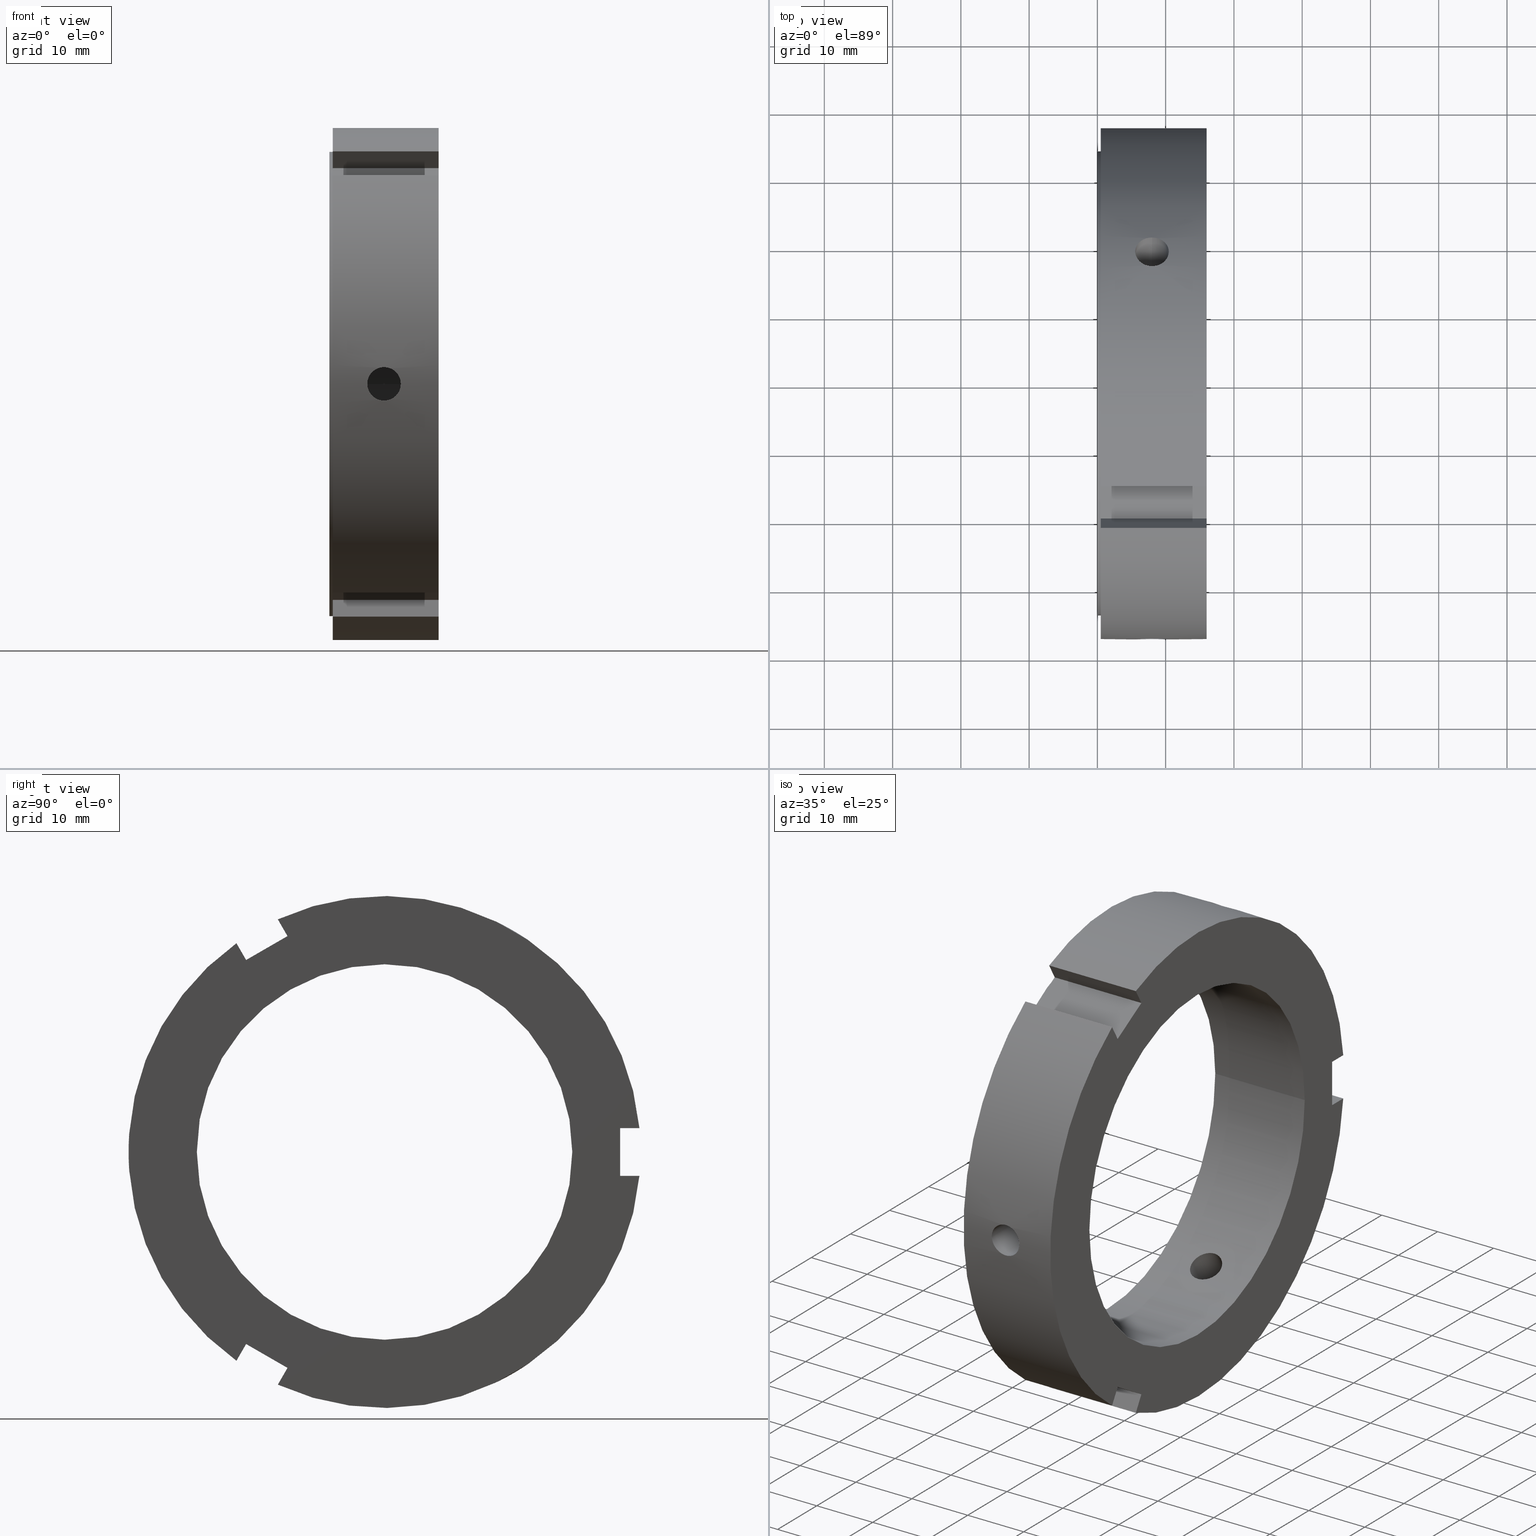
[diagram: canonical four-view strip — front | top / right | iso, engineering-drawing reading convention]
A machine part, canonical four-view strip (front | top / right | iso — engineering-drawing reading convention). The complete STEP part file that produces these views, byte-faithful:
ISO-10303-21;
HEADER;
/****************************************************************
 * Generated by software with PDE/Lib inside                    *
 * PDElib Version v51a, created Thu 01/14/2010                  *
 * ITI Transcendata (http://www.transcendata.com/)              *
 ****************************************************************/
FILE_DESCRIPTION((''),'2;1');
FILE_NAME('\\\\CAD-SVN\\cad-svn\\\X2\628088538AB2\X0\\\FKD\X2\88FD4F5C\X0\SP\\\X2\90E854C130E930A430D630E930EA\X0\\\HP \X2\30A230C330D730C730FC30C87528\X0\CAD\X2\30C730FC30BFFF0867007D42FF09\X0\\\3D data\\ZMT\\FKD ZMT 55.stp','2014-07-16T14:46:16',('fkd-ct1n'),(''),'Autodesk Inventor 2011','Autodesk Inventor 2011','');
FILE_SCHEMA(('AUTOMOTIVE_DESIGN { 1 0 10303 214 1 1 1 1 }'));
ENDSEC;
DATA;
#5=APPLICATION_CONTEXT('automotive design');
#6=APPLICATION_PROTOCOL_DEFINITION('International Standard','automotive_design',2001,#5);
#7=PRODUCT_CONTEXT('',#5,'mechanical');
#8=PRODUCT('FKD ZMT 55','FKD ZMT 55',$,(#7));
#9=PRODUCT_RELATED_PRODUCT_CATEGORY('part',$,(#8));
#10=PRODUCT_DEFINITION_FORMATION('',$,#8);
#11=PRODUCT_DEFINITION_CONTEXT('part definition',#5,'design');
#12=PRODUCT_DEFINITION('',$,#10,#11);
#18=(NAMED_UNIT(*)PLANE_ANGLE_UNIT()SI_UNIT($,.RADIAN.));
#19=DIMENSIONAL_EXPONENTS(0.0,0.0,0.0,0.0,0.0,0.0,0.0);
#20=PLANE_ANGLE_MEASURE_WITH_UNIT(PLANE_ANGLE_MEASURE(0.017453292500000),#18);
#24=(CONVERSION_BASED_UNIT('DEGREE',#20)NAMED_UNIT(#19)PLANE_ANGLE_UNIT());
#28=(NAMED_UNIT(*)SI_UNIT($,.STERADIAN.)SOLID_ANGLE_UNIT());
#32=(LENGTH_UNIT()NAMED_UNIT(*)SI_UNIT(.MILLI.,.METRE.));
#34=UNCERTAINTY_MEASURE_WITH_UNIT(LENGTH_MEASURE(0.010000000000000),#32,'DISTANCE_ACCURACY_VALUE','');
#36=(GEOMETRIC_REPRESENTATION_CONTEXT(3)GLOBAL_UNCERTAINTY_ASSIGNED_CONTEXT((#34))GLOBAL_UNIT_ASSIGNED_CONTEXT((#24,#28,#32))REPRESENTATION_CONTEXT('None','None'));
#37=AXIS2_PLACEMENT_3D('',#38,#39,#40);
#38=CARTESIAN_POINT('',(0.0,0.0,0.0));
#39=DIRECTION('',(0.0,0.0,1.0));
#40=DIRECTION('',(1.0,0.0,0.0));
#41=SHAPE_REPRESENTATION('',(#37),#36);
#42=PRODUCT_DEFINITION_SHAPE('','',#12);
#43=SHAPE_DEFINITION_REPRESENTATION(#42,#41);
#49=(NAMED_UNIT(*)PLANE_ANGLE_UNIT()SI_UNIT($,.RADIAN.));
#50=DIMENSIONAL_EXPONENTS(0.0,0.0,0.0,0.0,0.0,0.0,0.0);
#51=PLANE_ANGLE_MEASURE_WITH_UNIT(PLANE_ANGLE_MEASURE(0.017453292500000),#49);
#55=(CONVERSION_BASED_UNIT('DEGREE',#51)NAMED_UNIT(#50)PLANE_ANGLE_UNIT());
#59=(NAMED_UNIT(*)SI_UNIT($,.STERADIAN.)SOLID_ANGLE_UNIT());
#63=(LENGTH_UNIT()NAMED_UNIT(*)SI_UNIT(.MILLI.,.METRE.));
#65=UNCERTAINTY_MEASURE_WITH_UNIT(LENGTH_MEASURE(0.000001000000000),#63,'DISTANCE_ACCURACY_VALUE','');
#67=(GEOMETRIC_REPRESENTATION_CONTEXT(3)GLOBAL_UNCERTAINTY_ASSIGNED_CONTEXT((#65))GLOBAL_UNIT_ASSIGNED_CONTEXT((#55,#59,#63))REPRESENTATION_CONTEXT('','3D'));
#68=CARTESIAN_POINT('',(15.999999999999995,-20.281088913245551,-28.127876430563134));
#69=DIRECTION('',(0.0,-0.866025403784438,0.500000000000001));
#70=DIRECTION('',(-1.0,0.0,0.0));
#71=AXIS2_PLACEMENT_3D('',#68,#69,#70);
#72=PLANE('',#71);
#73=CARTESIAN_POINT('',(0.499999999999989,-20.281088913245551,-28.127876430563134));
#74=VERTEX_POINT('',#73);
#75=CARTESIAN_POINT('',(0.499999999999989,-21.699243615840018,-30.584192428449470));
#76=VERTEX_POINT('',#75);
#77=CARTESIAN_POINT('',(0.499999999999988,-20.281088913245561,-28.127876430563141));
#78=DIRECTION('',(0.0,-0.500000000000001,-0.866025403784438));
#79=VECTOR('',#78,2.836309405188922);
#80=LINE('',#77,#79);
#81=EDGE_CURVE('',#74,#76,#80,.T.);
#82=ORIENTED_EDGE('',*,*,#81,.F.);
#83=CARTESIAN_POINT('',(15.999999999999995,-20.281088913245551,-28.127876430563134));
#84=VERTEX_POINT('',#83);
#85=CARTESIAN_POINT('',(15.999999999999995,-20.281088913245551,-28.127876430563134));
#86=DIRECTION('',(-1.0,0.0,0.0));
#87=VECTOR('',#86,15.500000000000005);
#88=LINE('',#85,#87);
#89=EDGE_CURVE('',#84,#74,#88,.T.);
#90=ORIENTED_EDGE('',*,*,#89,.F.);
#91=CARTESIAN_POINT('',(15.999999999999995,-21.699243615840022,-30.584192428449477));
#92=VERTEX_POINT('',#91);
#93=CARTESIAN_POINT('',(15.999999999999995,-21.699243615840025,-30.584192428449484));
#94=DIRECTION('',(0.0,0.500000000000001,0.866025403784438));
#95=VECTOR('',#94,2.836309405188938);
#96=LINE('',#93,#95);
#97=EDGE_CURVE('',#92,#84,#96,.T.);
#98=ORIENTED_EDGE('',*,*,#97,.F.);
#99=CARTESIAN_POINT('',(0.499999999999989,-21.699243615840018,-30.584192428449480));
#100=DIRECTION('',(1.0,0.0,0.0));
#101=VECTOR('',#100,15.500000000000005);
#102=LINE('',#99,#101);
#103=EDGE_CURVE('',#76,#92,#102,.T.);
#104=ORIENTED_EDGE('',*,*,#103,.F.);
#105=EDGE_LOOP('',(#82,#90,#98,#104));
#106=FACE_OUTER_BOUND('',#105,.T.);
#107=ADVANCED_FACE('',(#106),#72,.F.);
#108=CARTESIAN_POINT('',(15.999999999999995,-15.718911086754485,-34.225952641916450));
#109=DIRECTION('',(0.0,0.866025403784438,-0.500000000000001));
#110=DIRECTION('',(1.0,0.0,0.0));
#111=AXIS2_PLACEMENT_3D('',#108,#109,#110);
#112=PLANE('',#111);
#113=CARTESIAN_POINT('',(0.499999999999989,-15.637065789348954,-34.084192428449470));
#114=VERTEX_POINT('',#113);
#115=CARTESIAN_POINT('',(0.499999999999989,-14.218911086754485,-31.627876430563127));
#116=VERTEX_POINT('',#115);
#117=CARTESIAN_POINT('',(0.499999999999988,-15.637065789348958,-34.084192428449477));
#118=DIRECTION('',(0.0,0.500000000000001,0.866025403784438));
#119=VECTOR('',#118,2.836309405188930);
#120=LINE('',#117,#119);
#121=EDGE_CURVE('',#114,#116,#120,.T.);
#122=ORIENTED_EDGE('',*,*,#121,.F.);
#123=CARTESIAN_POINT('',(15.999999999999995,-15.637065789348956,-34.084192428449484));
#124=VERTEX_POINT('',#123);
#125=CARTESIAN_POINT('',(15.999999999999995,-15.637065789348949,-34.084192428449477));
#126=DIRECTION('',(-1.0,0.0,0.0));
#127=VECTOR('',#126,15.500000000000005);
#128=LINE('',#125,#127);
#129=EDGE_CURVE('',#124,#114,#128,.T.);
#130=ORIENTED_EDGE('',*,*,#129,.F.);
#131=CARTESIAN_POINT('',(15.999999999999995,-14.218911086754485,-31.627876430563127));
#132=VERTEX_POINT('',#131);
#133=CARTESIAN_POINT('',(15.999999999999995,-14.218911086754483,-31.627876430563138));
#134=DIRECTION('',(0.0,-0.500000000000000,-0.866025403784439));
#135=VECTOR('',#134,2.836309405188949);
#136=LINE('',#133,#135);
#137=EDGE_CURVE('',#132,#124,#136,.T.);
#138=ORIENTED_EDGE('',*,*,#137,.F.);
#139=CARTESIAN_POINT('',(15.999999999999995,-14.218911086754485,-31.627876430563127));
#140=DIRECTION('',(-1.0,0.0,0.0));
#141=VECTOR('',#140,15.500000000000005);
#142=LINE('',#139,#141);
#143=EDGE_CURVE('',#132,#116,#142,.T.);
#144=ORIENTED_EDGE('',*,*,#143,.T.);
#145=EDGE_LOOP('',(#122,#130,#138,#144));
#146=FACE_OUTER_BOUND('',#145,.T.);
#147=ADVANCED_FACE('',(#146),#112,.F.);
#148=CARTESIAN_POINT('',(15.999999999999995,-14.218911086754485,-31.627876430563127));
#149=DIRECTION('',(0.0,0.500000000000001,0.866025403784438));
#150=DIRECTION('',(0.0,-0.866025403784438,0.500000000000000));
#151=AXIS2_PLACEMENT_3D('',#148,#149,#150);
#152=PLANE('',#151);
#153=CARTESIAN_POINT('',(0.499999999999988,-14.218911086754490,-31.627876430563131));
#154=DIRECTION('',(0.0,-0.866025403784438,0.500000000000001));
#155=VECTOR('',#154,6.999999999999999);
#156=LINE('',#153,#155);
#157=EDGE_CURVE('',#116,#74,#156,.T.);
#158=ORIENTED_EDGE('',*,*,#157,.F.);
#159=ORIENTED_EDGE('',*,*,#143,.F.);
#160=CARTESIAN_POINT('',(15.999999999999995,-20.281088913245558,-28.127876430563127));
#161=DIRECTION('',(0.0,0.866025403784438,-0.500000000000001));
#162=VECTOR('',#161,6.999999999999995);
#163=LINE('',#160,#162);
#164=EDGE_CURVE('',#84,#132,#163,.T.);
#165=ORIENTED_EDGE('',*,*,#164,.F.);
#166=ORIENTED_EDGE('',*,*,#89,.T.);
#167=EDGE_LOOP('',(#158,#159,#165,#166));
#168=FACE_OUTER_BOUND('',#167,.T.);
#169=ADVANCED_FACE('',(#168),#152,.F.);
#170=CARTESIAN_POINT('',(7.999999999999991,53.575818251775672,92.796039269151322));
#171=DIRECTION('',(0.0,-0.500000000000001,-0.866025403784438));
#172=DIRECTION('',(-1.0,0.0,0.0));
#173=AXIS2_PLACEMENT_3D('',#170,#171,#172);
#174=CYLINDRICAL_SURFACE('',#173,2.458500000000000);
#175=CARTESIAN_POINT('',(7.999999999999991,20.838785248980557,31.176834819251145));
#176=VERTEX_POINT('',#175);
#177=CARTESIAN_POINT('',(7.999999999999993,20.838785248980550,31.176834819251141));
#178=CARTESIAN_POINT('',(8.308789855491268,20.838785248980550,31.176834819251141));
#179=CARTESIAN_POINT('',(8.638101463612033,20.787433464880102,31.211350642644668));
#180=CARTESIAN_POINT('',(9.243798818486692,20.577737836051966,31.350000072030181));
#181=CARTESIAN_POINT('',(9.520192088796129,20.419288268104793,31.453940826156330));
#182=CARTESIAN_POINT('',(9.956651817806305,20.051430625994435,31.689712158089051));
#183=CARTESIAN_POINT('',(10.145843650462448,19.817457191254583,31.837244944203761));
#184=CARTESIAN_POINT('',(10.396770190486526,19.300509198690861,32.153259863268254));
#185=CARTESIAN_POINT('',(10.458499999999994,19.017419692028774,32.321557810737033));
#186=CARTESIAN_POINT('',(10.458499999999994,18.482580307971261,32.630347473095853));
#187=CARTESIAN_POINT('',(10.396770190486533,18.195285256727477,32.791361203675635));
#188=CARTESIAN_POINT('',(10.145843650462457,17.663134312560889,33.081043838138939));
#189=CARTESIAN_POINT('',(9.956651817806305,17.418380454524531,33.209904383376994));
#190=CARTESIAN_POINT('',(9.520192088796133,17.030267670531522,33.410592780454451));
#191=CARTESIAN_POINT('',(9.243798818486697,16.861027552996163,33.495843754452295));
#192=CARTESIAN_POINT('',(8.638101463612040,16.636105810514024,33.608120781387257));
#193=CARTESIAN_POINT('',(8.308789855491268,16.580538338572467,33.635334819251142));
#194=CARTESIAN_POINT('',(7.691210144508716,16.580538338572467,33.635334819251142));
#195=CARTESIAN_POINT('',(7.361898536387942,16.636105810514024,33.608120781387257));
#196=CARTESIAN_POINT('',(6.756201181513286,16.861027552996159,33.495843754452295));
#197=CARTESIAN_POINT('',(6.479807911203852,17.030267670531522,33.410592780454451));
#198=CARTESIAN_POINT('',(6.043348182193677,17.418380454524531,33.209904383376994));
#199=CARTESIAN_POINT('',(5.854156349537528,17.663134312560885,33.081043838138939));
#200=CARTESIAN_POINT('',(5.603229809513452,18.195285256727473,32.791361203675635));
#201=CARTESIAN_POINT('',(5.541499999999990,18.482580307971261,32.630347473095853));
#202=CARTESIAN_POINT('',(5.541499999999992,19.017419692028774,32.321557810737033));
#203=CARTESIAN_POINT('',(5.603229809513453,19.300509198690861,32.153259863268246));
#204=CARTESIAN_POINT('',(5.854156349537534,19.817457191254579,31.837244944203761));
#205=CARTESIAN_POINT('',(6.043348182193677,20.051430625994435,31.689712158089051));
#206=CARTESIAN_POINT('',(6.479807911203855,20.419288268104793,31.453940826156330));
#207=CARTESIAN_POINT('',(6.756201181513291,20.577737836051966,31.350000072030181));
#208=CARTESIAN_POINT('',(7.361898536387948,20.787433464880102,31.211350642644668));
#209=CARTESIAN_POINT('',(7.691210144508717,20.838785248980550,31.176834819251141));
#210=CARTESIAN_POINT('',(7.999999999999993,20.838785248980550,31.176834819251141));
#211=B_SPLINE_CURVE_WITH_KNOTS('',3,(#177,#178,#179,#180,#181,#182,#183,#184,#185,#186,#187,#188,#189,#190,#191,#192,#193,#194,#195,#196,#197,#198,#199,#200,#201,#202,#203,#204,#205,#206,#207,#208,#209,#210),.UNSPECIFIED.,.T.,.U.,(4,2,2,2,2,2,2,2,2,2,2,2,2,2,2,2,4),(0.0,0.092636956647383,0.185273913294765,0.277910812002411,0.370547710710057,0.463184609417703,0.555821508125348,0.648458464772731,0.741095421420114,0.833732378067497,0.926369334714880,1.019006233422525,1.111643132130171,1.204280030837817,1.296916929545463,1.389553886192845,1.482190842840228),.UNSPECIFIED.);
#212=EDGE_CURVE('',#176,#176,#211,.T.);
#213=ORIENTED_EDGE('',*,*,#212,.F.);
#214=EDGE_LOOP('',(#213));
#215=FACE_OUTER_BOUND('',#214,.T.);
#216=CARTESIAN_POINT('',(7.999999999999991,15.824065749259187,22.491085860027358));
#217=VERTEX_POINT('',#216);
#218=CARTESIAN_POINT('',(7.999999999999990,15.824065749259182,22.491085860027354));
#219=CARTESIAN_POINT('',(7.691127928927140,15.824065749259182,22.491085860027354));
#220=CARTESIAN_POINT('',(7.361781165696948,15.773459769381567,22.526957607554749));
#221=CARTESIAN_POINT('',(6.756106625812634,15.566529288029738,22.670443710234967));
#222=CARTESIAN_POINT('',(6.479764771078052,15.410061500522726,22.777791838321811));
#223=CARTESIAN_POINT('',(6.043391659325986,15.045971680898859,23.019915995718819));
#224=CARTESIAN_POINT('',(5.854212148169152,14.814005725707379,23.170823302224886));
#225=CARTESIAN_POINT('',(5.603261764644859,14.299844829240742,23.491620974346688));
#226=CARTESIAN_POINT('',(5.541499999999990,14.017490479572585,23.661262903685163));
#227=CARTESIAN_POINT('',(5.541499999999992,13.482509520427419,23.970134304458952));
#228=CARTESIAN_POINT('',(5.603261764644861,13.194418125239217,24.129839379471370));
#229=CARTESIAN_POINT('',(5.854212148169157,12.659518743473512,24.414716941383151));
#230=CARTESIAN_POINT('',(6.043391659325986,12.412846204826833,24.540151698139070));
#231=CARTESIAN_POINT('',(6.479764771078052,12.021115623839190,24.734400652494131));
#232=CARTESIAN_POINT('',(6.756106625812635,11.849915524113781,24.816231667305715));
#233=CARTESIAN_POINT('',(7.361781165696952,11.622187673426776,24.923695669633634));
#234=CARTESIAN_POINT('',(7.691127928927144,11.565818838851092,24.949585860027355));
#235=CARTESIAN_POINT('',(8.308872071072839,11.565818838851092,24.949585860027355));
#236=CARTESIAN_POINT('',(8.638218834303032,11.622187673426774,24.923695669633634));
#237=CARTESIAN_POINT('',(9.243893374187346,11.849915524113776,24.816231667305715));
#238=CARTESIAN_POINT('',(9.520235228921930,12.021115623839185,24.734400652494131));
#239=CARTESIAN_POINT('',(9.956608340673997,12.412846204826828,24.540151698139066));
#240=CARTESIAN_POINT('',(10.145787851830825,12.659518743473509,24.414716941383155));
#241=CARTESIAN_POINT('',(10.396738235355123,13.194418125239215,24.129839379471370));
#242=CARTESIAN_POINT('',(10.458499999999990,13.482509520427419,23.970134304458949));
#243=CARTESIAN_POINT('',(10.458499999999994,14.017490479572585,23.661262903685166));
#244=CARTESIAN_POINT('',(10.396738235355127,14.299844829240737,23.491620974346684));
#245=CARTESIAN_POINT('',(10.145787851830834,14.814005725707375,23.170823302224882));
#246=CARTESIAN_POINT('',(9.956608340674000,15.045971680898859,23.019915995718826));
#247=CARTESIAN_POINT('',(9.520235228921933,15.410061500522726,22.777791838321811));
#248=CARTESIAN_POINT('',(9.243893374187351,15.566529288029736,22.670443710234967));
#249=CARTESIAN_POINT('',(8.638218834303036,15.773459769381565,22.526957607554749));
#250=CARTESIAN_POINT('',(8.308872071072843,15.824065749259182,22.491085860027354));
#251=CARTESIAN_POINT('',(7.999999999999993,15.824065749259182,22.491085860027354));
#252=B_SPLINE_CURVE_WITH_KNOTS('',3,(#218,#219,#220,#221,#222,#223,#224,#225,#226,#227,#228,#229,#230,#231,#232,#233,#234,#235,#236,#237,#238,#239,#240,#241,#242,#243,#244,#245,#246,#247,#248,#249,#250,#251),.UNSPECIFIED.,.T.,.U.,(4,2,2,2,2,2,2,2,2,2,2,2,2,2,2,2,4),(0.0,0.092661621321855,0.185323242643710,0.277984662875846,0.370646083107981,0.463307503340117,0.555968923572252,0.648630544894107,0.741292166215962,0.833953787537816,0.926615408859671,1.019276829091807,1.111938249323943,1.204599669556078,1.297261089788214,1.389922711110069,1.482584332431924),.UNSPECIFIED.);
#253=EDGE_CURVE('',#217,#217,#252,.T.);
#254=ORIENTED_EDGE('',*,*,#253,.F.);
#255=EDGE_LOOP('',(#254));
#256=FACE_BOUND('',#255,.T.);
#257=ADVANCED_FACE('',(#215,#256),#174,.F.);
#258=CARTESIAN_POINT('',(15.999999999999995,-14.218911086754460,31.627876430563138));
#259=DIRECTION('',(0.0,0.866025403784439,0.500000000000000));
#260=DIRECTION('',(-1.0,0.0,0.0));
#261=AXIS2_PLACEMENT_3D('',#258,#259,#260);
#262=PLANE('',#261);
#263=CARTESIAN_POINT('',(0.499999999999989,-14.218911086754460,31.627876430563138));
#264=VERTEX_POINT('',#263);
#265=CARTESIAN_POINT('',(0.499999999999989,-15.637065789348926,34.084192428449484));
#266=VERTEX_POINT('',#265);
#267=CARTESIAN_POINT('',(0.499999999999990,-14.218911086754462,31.627876430563141));
#268=DIRECTION('',(0.0,-0.500000000000000,0.866025403784439));
#269=VECTOR('',#268,2.836309405188928);
#270=LINE('',#267,#269);
#271=EDGE_CURVE('',#264,#266,#270,.T.);
#272=ORIENTED_EDGE('',*,*,#271,.F.);
#273=CARTESIAN_POINT('',(15.999999999999995,-14.218911086754460,31.627876430563138));
#274=VERTEX_POINT('',#273);
#275=CARTESIAN_POINT('',(15.999999999999995,-14.218911086754460,31.627876430563138));
#276=DIRECTION('',(-1.0,0.0,0.0));
#277=VECTOR('',#276,15.500000000000005);
#278=LINE('',#275,#277);
#279=EDGE_CURVE('',#274,#264,#278,.T.);
#280=ORIENTED_EDGE('',*,*,#279,.F.);
#281=CARTESIAN_POINT('',(15.999999999999995,-15.637065789348927,34.084192428449491));
#282=VERTEX_POINT('',#281);
#283=CARTESIAN_POINT('',(15.999999999999995,-15.637065789348931,34.084192428449491));
#284=DIRECTION('',(0.0,0.500000000000001,-0.866025403784438));
#285=VECTOR('',#284,2.836309405188938);
#286=LINE('',#283,#285);
#287=EDGE_CURVE('',#282,#274,#286,.T.);
#288=ORIENTED_EDGE('',*,*,#287,.F.);
#289=CARTESIAN_POINT('',(0.499999999999989,-15.637065789348927,34.084192428449491));
#290=DIRECTION('',(1.0,0.0,0.0));
#291=VECTOR('',#290,15.500000000000005);
#292=LINE('',#289,#291);
#293=EDGE_CURVE('',#266,#282,#292,.T.);
#294=ORIENTED_EDGE('',*,*,#293,.F.);
#295=EDGE_LOOP('',(#272,#280,#288,#294));
#296=FACE_OUTER_BOUND('',#295,.T.);
#297=ADVANCED_FACE('',(#296),#262,.F.);
#298=CARTESIAN_POINT('',(15.999999999999995,-21.781088913245526,30.725952641916457));
#299=DIRECTION('',(0.0,-0.866025403784439,-0.500000000000000));
#300=DIRECTION('',(1.0,0.0,0.0));
#301=AXIS2_PLACEMENT_3D('',#298,#299,#300);
#302=PLANE('',#301);
#303=CARTESIAN_POINT('',(0.499999999999989,-21.699243615839997,30.584192428449487));
#304=VERTEX_POINT('',#303);
#305=CARTESIAN_POINT('',(0.499999999999989,-20.281088913245529,28.127876430563141));
#306=VERTEX_POINT('',#305);
#307=CARTESIAN_POINT('',(0.499999999999990,-21.699243615839997,30.584192428449491));
#308=DIRECTION('',(0.0,0.500000000000000,-0.866025403784438));
#309=VECTOR('',#308,2.836309405188933);
#310=LINE('',#307,#309);
#311=EDGE_CURVE('',#304,#306,#310,.T.);
#312=ORIENTED_EDGE('',*,*,#311,.F.);
#313=CARTESIAN_POINT('',(15.999999999999995,-21.699243615839997,30.584192428449491));
#314=VERTEX_POINT('',#313);
#315=CARTESIAN_POINT('',(15.999999999999995,-21.699243615839997,30.584192428449491));
#316=DIRECTION('',(-1.0,0.0,0.0));
#317=VECTOR('',#316,15.500000000000005);
#318=LINE('',#315,#317);
#319=EDGE_CURVE('',#314,#304,#318,.T.);
#320=ORIENTED_EDGE('',*,*,#319,.F.);
#321=CARTESIAN_POINT('',(15.999999999999995,-20.281088913245529,28.127876430563141));
#322=VERTEX_POINT('',#321);
#323=CARTESIAN_POINT('',(15.999999999999995,-20.281088913245533,28.127876430563145));
#324=DIRECTION('',(0.0,-0.500000000000000,0.866025403784439));
#325=VECTOR('',#324,2.836309405188936);
#326=LINE('',#323,#325);
#327=EDGE_CURVE('',#322,#314,#326,.T.);
#328=ORIENTED_EDGE('',*,*,#327,.F.);
#329=CARTESIAN_POINT('',(15.999999999999995,-20.281088913245529,28.127876430563141));
#330=DIRECTION('',(-1.0,0.0,0.0));
#331=VECTOR('',#330,15.500000000000005);
#332=LINE('',#329,#331);
#333=EDGE_CURVE('',#322,#306,#332,.T.);
#334=ORIENTED_EDGE('',*,*,#333,.T.);
#335=EDGE_LOOP('',(#312,#320,#328,#334));
#336=FACE_OUTER_BOUND('',#335,.T.);
#337=ADVANCED_FACE('',(#336),#302,.F.);
#338=CARTESIAN_POINT('',(15.999999999999995,-20.281088913245529,28.127876430563141));
#339=DIRECTION('',(0.0,0.500000000000000,-0.866025403784439));
#340=DIRECTION('',(0.0,0.866025403784439,0.500000000000000));
#341=AXIS2_PLACEMENT_3D('',#338,#339,#340);
#342=PLANE('',#341);
#343=CARTESIAN_POINT('',(0.499999999999990,-20.281088913245533,28.127876430563145));
#344=DIRECTION('',(0.0,0.866025403784439,0.500000000000000));
#345=VECTOR('',#344,6.999999999999997);
#346=LINE('',#343,#345);
#347=EDGE_CURVE('',#306,#264,#346,.T.);
#348=ORIENTED_EDGE('',*,*,#347,.F.);
#349=ORIENTED_EDGE('',*,*,#333,.F.);
#350=CARTESIAN_POINT('',(15.999999999999995,-14.218911086754463,31.627876430563145));
#351=DIRECTION('',(0.0,-0.866025403784439,-0.500000000000000));
#352=VECTOR('',#351,6.999999999999999);
#353=LINE('',#350,#352);
#354=EDGE_CURVE('',#274,#322,#353,.T.);
#355=ORIENTED_EDGE('',*,*,#354,.F.);
#356=ORIENTED_EDGE('',*,*,#279,.T.);
#357=EDGE_LOOP('',(#348,#349,#355,#356));
#358=FACE_OUTER_BOUND('',#357,.T.);
#359=ADVANCED_FACE('',(#358),#342,.F.);
#360=CARTESIAN_POINT('',(7.999999999999991,53.575818251775601,-92.796039269151365));
#361=DIRECTION('',(0.0,-0.500000000000000,0.866025403784439));
#362=DIRECTION('',(-1.0,0.0,0.0));
#363=AXIS2_PLACEMENT_3D('',#360,#361,#362);
#364=CYLINDRICAL_SURFACE('',#363,2.458500000000000);
#365=CARTESIAN_POINT('',(7.999999999999991,16.580538338572449,-33.635334819251156));
#366=VERTEX_POINT('',#365);
#367=CARTESIAN_POINT('',(7.999999999999991,16.580538338572449,-33.635334819251156));
#368=CARTESIAN_POINT('',(8.308789855491268,16.580538338572449,-33.635334819251156));
#369=CARTESIAN_POINT('',(8.638101463612035,16.636105810514007,-33.608120781387271));
#370=CARTESIAN_POINT('',(9.243798818486692,16.861027552996141,-33.495843754452309));
#371=CARTESIAN_POINT('',(9.520192088796129,17.030267670531494,-33.410592780454465));
#372=CARTESIAN_POINT('',(9.956651817806305,17.418380454524499,-33.209904383377015));
#373=CARTESIAN_POINT('',(10.145843650462449,17.663134312560857,-33.081043838138953));
#374=CARTESIAN_POINT('',(10.396770190486532,18.195285256727448,-32.791361203675649));
#375=CARTESIAN_POINT('',(10.458499999999994,18.482580307971233,-32.630347473095853));
#376=CARTESIAN_POINT('',(10.458499999999994,19.017419692028746,-32.321557810737033));
#377=CARTESIAN_POINT('',(10.396770190486532,19.300509198690840,-32.153259863268261));
#378=CARTESIAN_POINT('',(10.145843650462453,19.817457191254555,-31.837244944203775));
#379=CARTESIAN_POINT('',(9.956651817806305,20.051430625994406,-31.689712158089065));
#380=CARTESIAN_POINT('',(9.520192088796133,20.419288268104765,-31.453940826156348));
#381=CARTESIAN_POINT('',(9.243798818486694,20.577737836051952,-31.350000072030191));
#382=CARTESIAN_POINT('',(8.638101463612035,20.787433464880081,-31.211350642644682));
#383=CARTESIAN_POINT('',(8.308789855491268,20.838785248980535,-31.176834819251155));
#384=CARTESIAN_POINT('',(7.691210144508716,20.838785248980535,-31.176834819251155));
#385=CARTESIAN_POINT('',(7.361898536387942,20.787433464880078,-31.211350642644678));
#386=CARTESIAN_POINT('',(6.756201181513286,20.577737836051945,-31.350000072030188));
#387=CARTESIAN_POINT('',(6.479807911203849,20.419288268104765,-31.453940826156348));
#388=CARTESIAN_POINT('',(6.043348182193677,20.051430625994406,-31.689712158089065));
#389=CARTESIAN_POINT('',(5.854156349537530,19.817457191254555,-31.837244944203775));
#390=CARTESIAN_POINT('',(5.603229809513453,19.300509198690840,-32.153259863268261));
#391=CARTESIAN_POINT('',(5.541499999999990,19.017419692028746,-32.321557810737033));
#392=CARTESIAN_POINT('',(5.541499999999992,18.482580307971233,-32.630347473095860));
#393=CARTESIAN_POINT('',(5.603229809513453,18.195285256727448,-32.791361203675649));
#394=CARTESIAN_POINT('',(5.854156349537534,17.663134312560857,-33.081043838138953));
#395=CARTESIAN_POINT('',(6.043348182193677,17.418380454524502,-33.209904383377015));
#396=CARTESIAN_POINT('',(6.479807911203855,17.030267670531494,-33.410592780454465));
#397=CARTESIAN_POINT('',(6.756201181513291,16.861027552996138,-33.495843754452309));
#398=CARTESIAN_POINT('',(7.361898536387948,16.636105810514003,-33.608120781387271));
#399=CARTESIAN_POINT('',(7.691210144508716,16.580538338572449,-33.635334819251156));
#400=CARTESIAN_POINT('',(7.999999999999991,16.580538338572449,-33.635334819251156));
#401=B_SPLINE_CURVE_WITH_KNOTS('',3,(#367,#368,#369,#370,#371,#372,#373,#374,#375,#376,#377,#378,#379,#380,#381,#382,#383,#384,#385,#386,#387,#388,#389,#390,#391,#392,#393,#394,#395,#396,#397,#398,#399,#400),.UNSPECIFIED.,.T.,.U.,(4,2,2,2,2,2,2,2,2,2,2,2,2,2,2,2,4),(0.0,0.092636956647383,0.185273913294765,0.277910812002411,0.370547710710057,0.463184609417703,0.555821508125348,0.648458464772731,0.741095421420114,0.833732378067497,0.926369334714880,1.019006233422525,1.111643132130171,1.204280030837817,1.296916929545463,1.389553886192845,1.482190842840228),.UNSPECIFIED.);
#402=EDGE_CURVE('',#366,#366,#401,.T.);
#403=ORIENTED_EDGE('',*,*,#402,.F.);
#404=EDGE_LOOP('',(#403));
#405=FACE_OUTER_BOUND('',#404,.T.);
#406=CARTESIAN_POINT('',(7.999999999999991,11.565818838851083,-24.949585860027366));
#407=VERTEX_POINT('',#406);
#408=CARTESIAN_POINT('',(7.999999999999993,11.565818838851083,-24.949585860027366));
#409=CARTESIAN_POINT('',(7.691127928927144,11.565818838851083,-24.949585860027366));
#410=CARTESIAN_POINT('',(7.361781165696952,11.622187673426762,-24.923695669633645));
#411=CARTESIAN_POINT('',(6.756106625812638,11.849915524113769,-24.816231667305722));
#412=CARTESIAN_POINT('',(6.479764771078054,12.021115623839176,-24.734400652494138));
#413=CARTESIAN_POINT('',(6.043391659325986,12.412846204826820,-24.540151698139077));
#414=CARTESIAN_POINT('',(5.854212148169155,12.659518743473498,-24.414716941383162));
#415=CARTESIAN_POINT('',(5.603261764644860,13.194418125239210,-24.129839379471370));
#416=CARTESIAN_POINT('',(5.541499999999991,13.482509520427408,-23.970134304458952));
#417=CARTESIAN_POINT('',(5.541499999999991,14.017490479572576,-23.661262903685163));
#418=CARTESIAN_POINT('',(5.603261764644861,14.299844829240733,-23.491620974346688));
#419=CARTESIAN_POINT('',(5.854212148169157,14.814005725707368,-23.170823302224886));
#420=CARTESIAN_POINT('',(6.043391659325986,15.045971680898854,-23.019915995718829));
#421=CARTESIAN_POINT('',(6.479764771078052,15.410061500522719,-22.777791838321818));
#422=CARTESIAN_POINT('',(6.756106625812635,15.566529288029722,-22.670443710234970));
#423=CARTESIAN_POINT('',(7.361781165696948,15.773459769381553,-22.526957607554756));
#424=CARTESIAN_POINT('',(7.691127928927141,15.824065749259169,-22.491085860027358));
#425=CARTESIAN_POINT('',(8.308872071072839,15.824065749259171,-22.491085860027361));
#426=CARTESIAN_POINT('',(8.638218834303030,15.773459769381555,-22.526957607554756));
#427=CARTESIAN_POINT('',(9.243893374187346,15.566529288029724,-22.670443710234977));
#428=CARTESIAN_POINT('',(9.520235228921932,15.410061500522730,-22.777791838321821));
#429=CARTESIAN_POINT('',(9.956608340674000,15.045971680898862,-23.019915995718829));
#430=CARTESIAN_POINT('',(10.145787851830825,14.814005725707371,-23.170823302224889));
#431=CARTESIAN_POINT('',(10.396738235355121,14.299844829240733,-23.491620974346688));
#432=CARTESIAN_POINT('',(10.458499999999994,14.017490479572579,-23.661262903685163));
#433=CARTESIAN_POINT('',(10.458499999999994,13.482509520427408,-23.970134304458952));
#434=CARTESIAN_POINT('',(10.396738235355121,13.194418125239210,-24.129839379471370));
#435=CARTESIAN_POINT('',(10.145787851830825,12.659518743473498,-24.414716941383162));
#436=CARTESIAN_POINT('',(9.956608340673999,12.412846204826820,-24.540151698139077));
#437=CARTESIAN_POINT('',(9.520235228921932,12.021115623839176,-24.734400652494138));
#438=CARTESIAN_POINT('',(9.243893374187346,11.849915524113763,-24.816231667305722));
#439=CARTESIAN_POINT('',(8.638218834303032,11.622187673426760,-24.923695669633645));
#440=CARTESIAN_POINT('',(8.308872071072841,11.565818838851083,-24.949585860027366));
#441=CARTESIAN_POINT('',(7.999999999999991,11.565818838851083,-24.949585860027366));
#442=B_SPLINE_CURVE_WITH_KNOTS('',3,(#408,#409,#410,#411,#412,#413,#414,#415,#416,#417,#418,#419,#420,#421,#422,#423,#424,#425,#426,#427,#428,#429,#430,#431,#432,#433,#434,#435,#436,#437,#438,#439,#440,#441),.UNSPECIFIED.,.T.,.U.,(4,2,2,2,2,2,2,2,2,2,2,2,2,2,2,2,4),(0.0,0.092661621321855,0.185323242643709,0.277984662875845,0.370646083107981,0.463307503340117,0.555968923572253,0.648630544894107,0.741292166215962,0.833953787537817,0.926615408859671,1.019276829091807,1.111938249323944,1.204599669556080,1.297261089788216,1.389922711110070,1.482584332431925),.UNSPECIFIED.);
#443=EDGE_CURVE('',#407,#407,#442,.T.);
#444=ORIENTED_EDGE('',*,*,#443,.F.);
#445=EDGE_LOOP('',(#444));
#446=FACE_BOUND('',#445,.T.);
#447=ADVANCED_FACE('',(#405,#446),#364,.F.);
#448=CARTESIAN_POINT('',(15.999999999999995,32.500000000000000,0.0));
#449=DIRECTION('',(1.0,0.0,0.0));
#450=DIRECTION('',(0.0,0.0,-1.0));
#451=AXIS2_PLACEMENT_3D('',#448,#449,#450);
#452=PLANE('',#451);
#453=ORIENTED_EDGE('',*,*,#97,.T.);
#454=ORIENTED_EDGE('',*,*,#164,.T.);
#455=ORIENTED_EDGE('',*,*,#137,.T.);
#456=CARTESIAN_POINT('',(15.999999999999995,37.336309405188935,-3.499999999999999));
#457=VERTEX_POINT('',#456);
#458=CARTESIAN_POINT('',(15.999999999999993,0.0,0.0));
#459=DIRECTION('',(1.0,0.0,0.0));
#460=DIRECTION('',(0.0,1.0,0.0));
#461=AXIS2_PLACEMENT_3D('',#458,#459,#460);
#462=CIRCLE('',#461,37.500000000000000);
#463=EDGE_CURVE('',#124,#457,#462,.T.);
#464=ORIENTED_EDGE('',*,*,#463,.T.);
#465=CARTESIAN_POINT('',(15.999999999999995,34.500000000000000,-3.499999999999999));
#466=VERTEX_POINT('',#465);
#467=CARTESIAN_POINT('',(15.999999999999995,37.336309405188935,-3.499999999999999));
#468=DIRECTION('',(0.0,-1.0,0.0));
#469=VECTOR('',#468,2.836309405188935);
#470=LINE('',#467,#469);
#471=EDGE_CURVE('',#457,#466,#470,.T.);
#472=ORIENTED_EDGE('',*,*,#471,.T.);
#473=CARTESIAN_POINT('',(15.999999999999995,34.500000000000000,3.499999999999999));
#474=VERTEX_POINT('',#473);
#475=CARTESIAN_POINT('',(15.999999999999995,34.500000000000000,-3.499999999999999));
#476=DIRECTION('',(0.0,0.0,1.0));
#477=VECTOR('',#476,6.999999999999998);
#478=LINE('',#475,#477);
#479=EDGE_CURVE('',#466,#474,#478,.T.);
#480=ORIENTED_EDGE('',*,*,#479,.T.);
#481=CARTESIAN_POINT('',(15.999999999999995,37.336309405188935,3.499999999999999));
#482=VERTEX_POINT('',#481);
#483=CARTESIAN_POINT('',(15.999999999999995,34.500000000000000,3.499999999999999));
#484=DIRECTION('',(0.0,1.0,0.0));
#485=VECTOR('',#484,2.836309405188935);
#486=LINE('',#483,#485);
#487=EDGE_CURVE('',#474,#482,#486,.T.);
#488=ORIENTED_EDGE('',*,*,#487,.T.);
#489=CARTESIAN_POINT('',(15.999999999999993,0.0,0.0));
#490=DIRECTION('',(1.0,0.0,0.0));
#491=DIRECTION('',(0.0,1.0,0.0));
#492=AXIS2_PLACEMENT_3D('',#489,#490,#491);
#493=CIRCLE('',#492,37.500000000000000);
#494=EDGE_CURVE('',#482,#282,#493,.T.);
#495=ORIENTED_EDGE('',*,*,#494,.T.);
#496=ORIENTED_EDGE('',*,*,#287,.T.);
#497=ORIENTED_EDGE('',*,*,#354,.T.);
#498=ORIENTED_EDGE('',*,*,#327,.T.);
#499=CARTESIAN_POINT('',(15.999999999999993,0.0,0.0));
#500=DIRECTION('',(1.0,0.0,0.0));
#501=DIRECTION('',(0.0,1.0,0.0));
#502=AXIS2_PLACEMENT_3D('',#499,#500,#501);
#503=CIRCLE('',#502,37.500000000000000);
#504=EDGE_CURVE('',#314,#92,#503,.T.);
#505=ORIENTED_EDGE('',*,*,#504,.T.);
#506=EDGE_LOOP('',(#453,#454,#455,#464,#472,#480,#488,#495,#496,#497,#498,#505));
#507=FACE_OUTER_BOUND('',#506,.T.);
#508=CARTESIAN_POINT('',(15.999999999999996,27.500000000000000,0.0));
#509=VERTEX_POINT('',#508);
#510=CARTESIAN_POINT('',(15.999999999999996,0.0,0.0));
#511=DIRECTION('',(1.0,0.0,0.0));
#512=DIRECTION('',(0.0,1.0,0.0));
#513=AXIS2_PLACEMENT_3D('',#510,#511,#512);
#514=CIRCLE('',#513,27.500000000000000);
#515=EDGE_CURVE('',#509,#509,#514,.T.);
#516=ORIENTED_EDGE('',*,*,#515,.F.);
#517=EDGE_LOOP('',(#516));
#518=FACE_BOUND('',#517,.T.);
#519=ADVANCED_FACE('',(#507,#518),#452,.T.);
#520=CARTESIAN_POINT('',(8.249999999999991,0.0,0.0));
#521=DIRECTION('',(1.0,0.0,0.0));
#522=DIRECTION('',(0.0,1.0,0.0));
#523=AXIS2_PLACEMENT_3D('',#520,#521,#522);
#524=CYLINDRICAL_SURFACE('',#523,37.500000000000000);
#525=ORIENTED_EDGE('',*,*,#293,.T.);
#526=ORIENTED_EDGE('',*,*,#494,.F.);
#527=CARTESIAN_POINT('',(0.499999999999989,37.336309405188935,3.499999999999999));
#528=VERTEX_POINT('',#527);
#529=CARTESIAN_POINT('',(15.999999999999995,37.336309405188935,3.499999999999999));
#530=DIRECTION('',(-1.0,0.0,0.0));
#531=VECTOR('',#530,15.500000000000005);
#532=LINE('',#529,#531);
#533=EDGE_CURVE('',#482,#528,#532,.T.);
#534=ORIENTED_EDGE('',*,*,#533,.T.);
#535=CARTESIAN_POINT('',(0.499999999999989,0.0,0.0));
#536=DIRECTION('',(1.0,0.0,0.0));
#537=DIRECTION('',(0.0,1.0,0.0));
#538=AXIS2_PLACEMENT_3D('',#535,#536,#537);
#539=CIRCLE('',#538,37.499999999999993);
#540=EDGE_CURVE('',#528,#266,#539,.T.);
#541=ORIENTED_EDGE('',*,*,#540,.T.);
#542=EDGE_LOOP('',(#525,#526,#534,#541));
#543=FACE_OUTER_BOUND('',#542,.T.);
#544=ORIENTED_EDGE('',*,*,#212,.T.);
#545=EDGE_LOOP('',(#544));
#546=FACE_BOUND('',#545,.T.);
#547=ADVANCED_FACE('',(#543,#546),#524,.T.);
#548=CARTESIAN_POINT('',(8.249999999999991,0.0,0.0));
#549=DIRECTION('',(1.0,0.0,0.0));
#550=DIRECTION('',(0.0,1.0,0.0));
#551=AXIS2_PLACEMENT_3D('',#548,#549,#550);
#552=CYLINDRICAL_SURFACE('',#551,37.500000000000000);
#553=ORIENTED_EDGE('',*,*,#129,.T.);
#554=CARTESIAN_POINT('',(0.499999999999989,37.336309405188935,-3.499999999999999));
#555=VERTEX_POINT('',#554);
#556=CARTESIAN_POINT('',(0.499999999999989,0.0,0.0));
#557=DIRECTION('',(1.0,0.0,0.0));
#558=DIRECTION('',(0.0,1.0,0.0));
#559=AXIS2_PLACEMENT_3D('',#556,#557,#558);
#560=CIRCLE('',#559,37.499999999999993);
#561=EDGE_CURVE('',#114,#555,#560,.T.);
#562=ORIENTED_EDGE('',*,*,#561,.T.);
#563=CARTESIAN_POINT('',(0.499999999999989,37.336309405188935,-3.499999999999999));
#564=DIRECTION('',(1.0,0.0,0.0));
#565=VECTOR('',#564,15.500000000000005);
#566=LINE('',#563,#565);
#567=EDGE_CURVE('',#555,#457,#566,.T.);
#568=ORIENTED_EDGE('',*,*,#567,.T.);
#569=ORIENTED_EDGE('',*,*,#463,.F.);
#570=EDGE_LOOP('',(#553,#562,#568,#569));
#571=FACE_OUTER_BOUND('',#570,.T.);
#572=ORIENTED_EDGE('',*,*,#402,.T.);
#573=EDGE_LOOP('',(#572));
#574=FACE_BOUND('',#573,.T.);
#575=ADVANCED_FACE('',(#571,#574),#552,.T.);
#576=CARTESIAN_POINT('',(8.249999999999991,0.0,0.0));
#577=DIRECTION('',(1.0,0.0,0.0));
#578=DIRECTION('',(0.0,1.0,0.0));
#579=AXIS2_PLACEMENT_3D('',#576,#577,#578);
#580=CYLINDRICAL_SURFACE('',#579,37.500000000000000);
#581=ORIENTED_EDGE('',*,*,#103,.T.);
#582=ORIENTED_EDGE('',*,*,#504,.F.);
#583=ORIENTED_EDGE('',*,*,#319,.T.);
#584=CARTESIAN_POINT('',(0.499999999999989,0.0,0.0));
#585=DIRECTION('',(1.0,0.0,0.0));
#586=DIRECTION('',(0.0,1.0,0.0));
#587=AXIS2_PLACEMENT_3D('',#584,#585,#586);
#588=CIRCLE('',#587,37.499999999999993);
#589=EDGE_CURVE('',#304,#76,#588,.T.);
#590=ORIENTED_EDGE('',*,*,#589,.T.);
#591=EDGE_LOOP('',(#581,#582,#583,#590));
#592=FACE_OUTER_BOUND('',#591,.T.);
#593=CARTESIAN_POINT('',(7.999999999999991,-37.419323587552995,2.458500000000000));
#594=VERTEX_POINT('',#593);
#595=CARTESIAN_POINT('',(7.999999999999991,-37.419323587552995,2.458500000000000));
#596=CARTESIAN_POINT('',(8.308789855491268,-37.419323587552995,2.458500000000000));
#597=CARTESIAN_POINT('',(8.638101463612040,-37.423539275394091,2.396770138742590));
#598=CARTESIAN_POINT('',(9.243798818486695,-37.438765389048100,2.145843682422119));
#599=CARTESIAN_POINT('',(9.520192088796131,-37.449555938636273,1.956651954298114));
#600=CARTESIAN_POINT('',(9.956651817806305,-37.469811080518916,1.520192225287940));
#601=CARTESIAN_POINT('',(10.145843650462453,-37.480591503815425,1.243798893935173));
#602=CARTESIAN_POINT('',(10.396770190486532,-37.495794455418306,0.638101340407381));
#603=CARTESIAN_POINT('',(10.458499999999994,-37.500000000000000,0.308789662358819));
#604=CARTESIAN_POINT('',(10.458499999999994,-37.500000000000000,-0.308789662358818));
#605=CARTESIAN_POINT('',(10.396770190486532,-37.495794455418306,-0.638101340407380));
#606=CARTESIAN_POINT('',(10.145843650462453,-37.480591503815425,-1.243798893935172));
#607=CARTESIAN_POINT('',(9.956651817806307,-37.469811080518923,-1.520192225287939));
#608=CARTESIAN_POINT('',(9.520192088796133,-37.449555938636273,-1.956651954298114));
#609=CARTESIAN_POINT('',(9.243798818486695,-37.438765389048100,-2.145843682422119));
#610=CARTESIAN_POINT('',(8.638101463612038,-37.423539275394091,-2.396770138742590));
#611=CARTESIAN_POINT('',(8.308789855491268,-37.419323587552995,-2.458500000000000));
#612=CARTESIAN_POINT('',(7.691210144508716,-37.419323587552995,-2.458500000000000));
#613=CARTESIAN_POINT('',(7.361898536387943,-37.423539275394091,-2.396770138742590));
#614=CARTESIAN_POINT('',(6.756201181513287,-37.438765389048100,-2.145843682422118));
#615=CARTESIAN_POINT('',(6.479807911203852,-37.449555938636273,-1.956651954298114));
#616=CARTESIAN_POINT('',(6.043348182193677,-37.469811080518916,-1.520192225287940));
#617=CARTESIAN_POINT('',(5.854156349537530,-37.480591503815425,-1.243798893935173));
#618=CARTESIAN_POINT('',(5.603229809513453,-37.495794455418306,-0.638101340407381));
#619=CARTESIAN_POINT('',(5.541499999999991,-37.500000000000000,-0.308789662358819));
#620=CARTESIAN_POINT('',(5.541499999999991,-37.500000000000000,0.308789662358818));
#621=CARTESIAN_POINT('',(5.603229809513453,-37.495794455418306,0.638101340407381));
#622=CARTESIAN_POINT('',(5.854156349537529,-37.480591503815425,1.243798893935173));
#623=CARTESIAN_POINT('',(6.043348182193675,-37.469811080518916,1.520192225287939));
#624=CARTESIAN_POINT('',(6.479807911203849,-37.449555938636280,1.956651954298113));
#625=CARTESIAN_POINT('',(6.756201181513285,-37.438765389048100,2.145843682422118));
#626=CARTESIAN_POINT('',(7.361898536387942,-37.423539275394091,2.396770138742590));
#627=CARTESIAN_POINT('',(7.691210144508716,-37.419323587552995,2.458500000000000));
#628=CARTESIAN_POINT('',(7.999999999999991,-37.419323587552995,2.458500000000000));
#629=B_SPLINE_CURVE_WITH_KNOTS('',3,(#595,#596,#597,#598,#599,#600,#601,#602,#603,#604,#605,#606,#607,#608,#609,#610,#611,#612,#613,#614,#615,#616,#617,#618,#619,#620,#621,#622,#623,#624,#625,#626,#627,#628),.UNSPECIFIED.,.T.,.U.,(4,2,2,2,2,2,2,2,2,2,2,2,2,2,2,2,4),(0.0,0.092636956647383,0.185273913294765,0.277910812002411,0.370547710710057,0.463184609417702,0.555821508125348,0.648458464772731,0.741095421420113,0.833732378067496,0.926369334714879,1.019006233422525,1.111643132130170,1.204280030837816,1.296916929545461,1.389553886192844,1.482190842840227),.UNSPECIFIED.);
#630=EDGE_CURVE('',#594,#594,#629,.T.);
#631=ORIENTED_EDGE('',*,*,#630,.T.);
#632=EDGE_LOOP('',(#631));
#633=FACE_BOUND('',#632,.T.);
#634=ADVANCED_FACE('',(#592,#633),#580,.T.);
#635=CARTESIAN_POINT('',(7.999999999999991,-107.151636503551230,0.0));
#636=DIRECTION('',(0.0,1.0,0.0));
#637=DIRECTION('',(-1.0,0.0,0.0));
#638=AXIS2_PLACEMENT_3D('',#635,#636,#637);
#639=CYLINDRICAL_SURFACE('',#638,2.458500000000000);
#640=ORIENTED_EDGE('',*,*,#630,.F.);
#641=EDGE_LOOP('',(#640));
#642=FACE_OUTER_BOUND('',#641,.T.);
#643=CARTESIAN_POINT('',(7.999999999999991,-27.389884588110260,2.458500000000000));
#644=VERTEX_POINT('',#643);
#645=CARTESIAN_POINT('',(7.999999999999993,-27.389884588110260,2.458500000000000));
#646=CARTESIAN_POINT('',(7.691127928927144,-27.389884588110260,2.458500000000000));
#647=CARTESIAN_POINT('',(7.361781165696950,-27.395647442808322,2.396738062078883));
#648=CARTESIAN_POINT('',(6.756106625812635,-27.416444812143492,2.145787957070748));
#649=CARTESIAN_POINT('',(6.479764771078052,-27.431177124361909,1.956608814172314));
#650=CARTESIAN_POINT('',(6.043391659325984,-27.458817885725679,1.520235702420247));
#651=CARTESIAN_POINT('',(5.854212148169155,-27.473524469180877,1.243893639158268));
#652=CARTESIAN_POINT('',(5.603261764644859,-27.494262954479947,0.638218405124681));
#653=CARTESIAN_POINT('',(5.541499999999991,-27.500000000000000,0.308871400773786));
#654=CARTESIAN_POINT('',(5.541499999999991,-27.500000000000000,-0.308871400773786));
#655=CARTESIAN_POINT('',(5.603261764644859,-27.494262954479947,-0.638218405124681));
#656=CARTESIAN_POINT('',(5.854212148169155,-27.473524469180877,-1.243893639158268));
#657=CARTESIAN_POINT('',(6.043391659325984,-27.458817885725679,-1.520235702420247));
#658=CARTESIAN_POINT('',(6.479764771078052,-27.431177124361909,-1.956608814172314));
#659=CARTESIAN_POINT('',(6.756106625812635,-27.416444812143492,-2.145787957070748));
#660=CARTESIAN_POINT('',(7.361781165696950,-27.395647442808322,-2.396738062078883));
#661=CARTESIAN_POINT('',(7.691127928927143,-27.389884588110260,-2.458500000000000));
#662=CARTESIAN_POINT('',(8.308872071072841,-27.389884588110260,-2.458500000000000));
#663=CARTESIAN_POINT('',(8.638218834303032,-27.395647442808322,-2.396738062078883));
#664=CARTESIAN_POINT('',(9.243893374187348,-27.416444812143492,-2.145787957070748));
#665=CARTESIAN_POINT('',(9.520235228921932,-27.431177124361909,-1.956608814172314));
#666=CARTESIAN_POINT('',(9.956608340673999,-27.458817885725679,-1.520235702420246));
#667=CARTESIAN_POINT('',(10.145787851830825,-27.473524469180880,-1.243893639158267));
#668=CARTESIAN_POINT('',(10.396738235355121,-27.494262954479950,-0.638218405124680));
#669=CARTESIAN_POINT('',(10.458499999999994,-27.500000000000000,-0.308871400773786));
#670=CARTESIAN_POINT('',(10.458499999999994,-27.500000000000000,0.308871400773785));
#671=CARTESIAN_POINT('',(10.396738235355125,-27.494262954479950,0.638218405124680));
#672=CARTESIAN_POINT('',(10.145787851830830,-27.473524469180880,1.243893639158266));
#673=CARTESIAN_POINT('',(9.956608340674000,-27.458817885725679,1.520235702420246));
#674=CARTESIAN_POINT('',(9.520235228921932,-27.431177124361909,1.956608814172314));
#675=CARTESIAN_POINT('',(9.243893374187348,-27.416444812143492,2.145787957070748));
#676=CARTESIAN_POINT('',(8.638218834303036,-27.395647442808322,2.396738062078882));
#677=CARTESIAN_POINT('',(8.308872071072843,-27.389884588110260,2.458500000000000));
#678=CARTESIAN_POINT('',(7.999999999999993,-27.389884588110260,2.458500000000000));
#679=B_SPLINE_CURVE_WITH_KNOTS('',3,(#645,#646,#647,#648,#649,#650,#651,#652,#653,#654,#655,#656,#657,#658,#659,#660,#661,#662,#663,#664,#665,#666,#667,#668,#669,#670,#671,#672,#673,#674,#675,#676,#677,#678),.UNSPECIFIED.,.T.,.U.,(4,2,2,2,2,2,2,2,2,2,2,2,2,2,2,2,4),(0.0,0.092661621321855,0.185323242643709,0.277984662875845,0.370646083107981,0.463307503340117,0.555968923572252,0.648630544894107,0.741292166215962,0.833953787537816,0.926615408859671,1.019276829091807,1.111938249323943,1.204599669556078,1.297261089788214,1.389922711110069,1.482584332431923),.UNSPECIFIED.);
#680=EDGE_CURVE('',#644,#644,#679,.T.);
#681=ORIENTED_EDGE('',*,*,#680,.F.);
#682=EDGE_LOOP('',(#681));
#683=FACE_BOUND('',#682,.T.);
#684=ADVANCED_FACE('',(#642,#683),#639,.F.);
#685=CARTESIAN_POINT('',(15.999999999999995,34.500000000000000,-3.499999999999999));
#686=DIRECTION('',(0.0,0.0,-1.0));
#687=DIRECTION('',(-1.0,0.0,0.0));
#688=AXIS2_PLACEMENT_3D('',#685,#686,#687);
#689=PLANE('',#688);
#690=CARTESIAN_POINT('',(0.499999999999989,34.500000000000000,-3.499999999999999));
#691=VERTEX_POINT('',#690);
#692=CARTESIAN_POINT('',(0.499999999999989,34.500000000000000,-3.499999999999999));
#693=DIRECTION('',(0.0,1.0,0.0));
#694=VECTOR('',#693,2.836309405188928);
#695=LINE('',#692,#694);
#696=EDGE_CURVE('',#691,#555,#695,.T.);
#697=ORIENTED_EDGE('',*,*,#696,.F.);
#698=CARTESIAN_POINT('',(15.999999999999995,34.500000000000000,-3.499999999999999));
#699=DIRECTION('',(-1.0,0.0,0.0));
#700=VECTOR('',#699,15.500000000000005);
#701=LINE('',#698,#700);
#702=EDGE_CURVE('',#466,#691,#701,.T.);
#703=ORIENTED_EDGE('',*,*,#702,.F.);
#704=ORIENTED_EDGE('',*,*,#471,.F.);
#705=ORIENTED_EDGE('',*,*,#567,.F.);
#706=EDGE_LOOP('',(#697,#703,#704,#705));
#707=FACE_OUTER_BOUND('',#706,.T.);
#708=ADVANCED_FACE('',(#707),#689,.F.);
#709=CARTESIAN_POINT('',(15.999999999999995,37.500000000000000,3.499999999999999));
#710=DIRECTION('',(0.0,0.0,1.0));
#711=DIRECTION('',(1.0,0.0,0.0));
#712=AXIS2_PLACEMENT_3D('',#709,#710,#711);
#713=PLANE('',#712);
#714=CARTESIAN_POINT('',(0.499999999999989,34.500000000000000,3.499999999999999));
#715=VERTEX_POINT('',#714);
#716=CARTESIAN_POINT('',(0.499999999999989,37.336309405188928,3.499999999999999));
#717=DIRECTION('',(0.0,-1.0,0.0));
#718=VECTOR('',#717,2.836309405188928);
#719=LINE('',#716,#718);
#720=EDGE_CURVE('',#528,#715,#719,.T.);
#721=ORIENTED_EDGE('',*,*,#720,.F.);
#722=ORIENTED_EDGE('',*,*,#533,.F.);
#723=ORIENTED_EDGE('',*,*,#487,.F.);
#724=CARTESIAN_POINT('',(15.999999999999995,34.500000000000000,3.499999999999999));
#725=DIRECTION('',(-1.0,0.0,0.0));
#726=VECTOR('',#725,15.500000000000005);
#727=LINE('',#724,#726);
#728=EDGE_CURVE('',#474,#715,#727,.T.);
#729=ORIENTED_EDGE('',*,*,#728,.T.);
#730=EDGE_LOOP('',(#721,#722,#723,#729));
#731=FACE_OUTER_BOUND('',#730,.T.);
#732=ADVANCED_FACE('',(#731),#713,.F.);
#733=CARTESIAN_POINT('',(15.999999999999995,34.500000000000000,3.499999999999999));
#734=DIRECTION('',(0.0,-1.0,0.0));
#735=DIRECTION('',(0.0,0.0,-1.0));
#736=AXIS2_PLACEMENT_3D('',#733,#734,#735);
#737=PLANE('',#736);
#738=CARTESIAN_POINT('',(0.499999999999989,34.500000000000000,3.499999999999999));
#739=DIRECTION('',(0.0,0.0,-1.0));
#740=VECTOR('',#739,6.999999999999998);
#741=LINE('',#738,#740);
#742=EDGE_CURVE('',#715,#691,#741,.T.);
#743=ORIENTED_EDGE('',*,*,#742,.F.);
#744=ORIENTED_EDGE('',*,*,#728,.F.);
#745=ORIENTED_EDGE('',*,*,#479,.F.);
#746=ORIENTED_EDGE('',*,*,#702,.T.);
#747=EDGE_LOOP('',(#743,#744,#745,#746));
#748=FACE_OUTER_BOUND('',#747,.T.);
#749=ADVANCED_FACE('',(#748),#737,.F.);
#750=CARTESIAN_POINT('',(-8.203665E-015,30.750000000000000,0.0));
#751=DIRECTION('',(-1.0,0.0,0.0));
#752=DIRECTION('',(0.0,0.0,1.0));
#753=AXIS2_PLACEMENT_3D('',#750,#751,#752);
#754=PLANE('',#753);
#755=CARTESIAN_POINT('',(-8.881784E-015,34.0,0.0));
#756=VERTEX_POINT('',#755);
#757=CARTESIAN_POINT('',(-8.881784E-015,0.0,0.0));
#758=DIRECTION('',(1.0,0.0,0.0));
#759=DIRECTION('',(0.0,1.0,0.0));
#760=AXIS2_PLACEMENT_3D('',#757,#758,#759);
#761=CIRCLE('',#760,34.0);
#762=EDGE_CURVE('',#756,#756,#761,.T.);
#763=ORIENTED_EDGE('',*,*,#762,.F.);
#764=EDGE_LOOP('',(#763));
#765=FACE_OUTER_BOUND('',#764,.T.);
#766=CARTESIAN_POINT('',(-7.525546E-015,27.500000000000000,0.0));
#767=VERTEX_POINT('',#766);
#768=CARTESIAN_POINT('',(-7.524363E-015,0.0,0.0));
#769=DIRECTION('',(1.0,0.0,0.0));
#770=DIRECTION('',(0.0,1.0,0.0));
#771=AXIS2_PLACEMENT_3D('',#768,#769,#770);
#772=CIRCLE('',#771,27.500000000000000);
#773=EDGE_CURVE('',#767,#767,#772,.T.);
#774=ORIENTED_EDGE('',*,*,#773,.T.);
#775=EDGE_LOOP('',(#774));
#776=FACE_BOUND('',#775,.T.);
#777=ADVANCED_FACE('',(#765,#776),#754,.T.);
#778=CARTESIAN_POINT('',(0.249999999999990,0.0,0.0));
#779=DIRECTION('',(1.0,0.0,0.0));
#780=DIRECTION('',(0.0,1.0,0.0));
#781=AXIS2_PLACEMENT_3D('',#778,#779,#780);
#782=CYLINDRICAL_SURFACE('',#781,34.0);
#783=CARTESIAN_POINT('',(0.499999999999989,34.0,0.0));
#784=VERTEX_POINT('',#783);
#785=CARTESIAN_POINT('',(0.499999999999989,0.0,0.0));
#786=DIRECTION('',(1.0,0.0,0.0));
#787=DIRECTION('',(0.0,1.0,0.0));
#788=AXIS2_PLACEMENT_3D('',#785,#786,#787);
#789=CIRCLE('',#788,34.0);
#790=EDGE_CURVE('',#784,#784,#789,.T.);
#791=ORIENTED_EDGE('',*,*,#790,.F.);
#792=EDGE_LOOP('',(#791));
#793=FACE_OUTER_BOUND('',#792,.T.);
#794=ORIENTED_EDGE('',*,*,#762,.T.);
#795=EDGE_LOOP('',(#794));
#796=FACE_BOUND('',#795,.T.);
#797=ADVANCED_FACE('',(#793,#796),#782,.T.);
#798=CARTESIAN_POINT('',(0.499999999999989,35.750000000000000,0.0));
#799=DIRECTION('',(-1.0,0.0,0.0));
#800=DIRECTION('',(0.0,0.0,1.0));
#801=AXIS2_PLACEMENT_3D('',#798,#799,#800);
#802=PLANE('',#801);
#803=ORIENTED_EDGE('',*,*,#81,.T.);
#804=ORIENTED_EDGE('',*,*,#589,.F.);
#805=ORIENTED_EDGE('',*,*,#311,.T.);
#806=ORIENTED_EDGE('',*,*,#347,.T.);
#807=ORIENTED_EDGE('',*,*,#271,.T.);
#808=ORIENTED_EDGE('',*,*,#540,.F.);
#809=ORIENTED_EDGE('',*,*,#720,.T.);
#810=ORIENTED_EDGE('',*,*,#742,.T.);
#811=ORIENTED_EDGE('',*,*,#696,.T.);
#812=ORIENTED_EDGE('',*,*,#561,.F.);
#813=ORIENTED_EDGE('',*,*,#121,.T.);
#814=ORIENTED_EDGE('',*,*,#157,.T.);
#815=EDGE_LOOP('',(#803,#804,#805,#806,#807,#808,#809,#810,#811,#812,#813,#814));
#816=FACE_OUTER_BOUND('',#815,.T.);
#817=ORIENTED_EDGE('',*,*,#790,.T.);
#818=EDGE_LOOP('',(#817));
#819=FACE_BOUND('',#818,.T.);
#820=ADVANCED_FACE('',(#816,#819),#802,.T.);
#821=CARTESIAN_POINT('',(7.999999999999995,0.0,0.0));
#822=DIRECTION('',(1.0,0.0,0.0));
#823=DIRECTION('',(0.0,1.0,0.0));
#824=AXIS2_PLACEMENT_3D('',#821,#822,#823);
#825=CYLINDRICAL_SURFACE('',#824,27.500000000000000);
#826=ORIENTED_EDGE('',*,*,#773,.F.);
#827=EDGE_LOOP('',(#826));
#828=FACE_OUTER_BOUND('',#827,.T.);
#829=ORIENTED_EDGE('',*,*,#253,.T.);
#830=EDGE_LOOP('',(#829));
#831=FACE_BOUND('',#830,.T.);
#832=ORIENTED_EDGE('',*,*,#443,.T.);
#833=EDGE_LOOP('',(#832));
#834=FACE_BOUND('',#833,.T.);
#835=ORIENTED_EDGE('',*,*,#680,.T.);
#836=EDGE_LOOP('',(#835));
#837=FACE_BOUND('',#836,.T.);
#838=ORIENTED_EDGE('',*,*,#515,.T.);
#839=EDGE_LOOP('',(#838));
#840=FACE_BOUND('',#839,.T.);
#841=ADVANCED_FACE('',(#828,#831,#834,#837,#840),#825,.F.);
#842=CLOSED_SHELL('',(#107,#147,#169,#257,#297,#337,#359,#447,#519,#547,#575,#634,#684,#708,#732,#749,#777,#797,#820,#841));
#843=MANIFOLD_SOLID_BREP('\X2\30BD30EA30C330C9\X0\1',#842);
#844=COLOUR_RGB('',0.321568995714188,0.321568995714188,0.321568995714188);
#845=FILL_AREA_STYLE_COLOUR('',#844);
#846=FILL_AREA_STYLE('',(#845));
#847=SURFACE_STYLE_FILL_AREA(#846);
#848=SURFACE_SIDE_STYLE('',(#847));
#849=SURFACE_STYLE_USAGE(.BOTH.,#848);
#850=PRESENTATION_STYLE_ASSIGNMENT((#849));
#851=STYLED_ITEM('',(#850),#107);
#852=STYLED_ITEM('',(#850),#147);
#853=STYLED_ITEM('',(#850),#169);
#854=STYLED_ITEM('',(#850),#297);
#855=STYLED_ITEM('',(#850),#337);
#856=STYLED_ITEM('',(#850),#359);
#857=STYLED_ITEM('',(#850),#519);
#858=STYLED_ITEM('',(#850),#547);
#859=STYLED_ITEM('',(#850),#575);
#860=STYLED_ITEM('',(#850),#634);
#861=STYLED_ITEM('',(#850),#708);
#862=STYLED_ITEM('',(#850),#732);
#863=STYLED_ITEM('',(#850),#749);
#864=STYLED_ITEM('',(#850),#797);
#865=STYLED_ITEM('',(#850),#820);
#866=MECHANICAL_DESIGN_GEOMETRIC_PRESENTATION_REPRESENTATION('',(#851,#852,#853,#854,#855,#856,#857,#858,#859,#860,#861,#862,#863,#864,#865,#874),#67);
#867=COLOUR_RGB('Metal-Steel',0.639216005802155,0.639216005802155,0.686275005340576);
#868=FILL_AREA_STYLE_COLOUR('Metal-Steel',#867);
#869=FILL_AREA_STYLE('Metal-Steel',(#868));
#870=SURFACE_STYLE_FILL_AREA(#869);
#871=SURFACE_SIDE_STYLE('Metal-Steel',(#870));
#872=SURFACE_STYLE_USAGE(.BOTH.,#871);
#873=PRESENTATION_STYLE_ASSIGNMENT((#872));
#874=STYLED_ITEM('',(#873),#843);
#875=ADVANCED_BREP_SHAPE_REPRESENTATION('ABSR',(#843),#36);
#876=SHAPE_REPRESENTATION_RELATIONSHIP('SRR','None',#875,#41);
ENDSEC;
END-ISO-10303-21;
